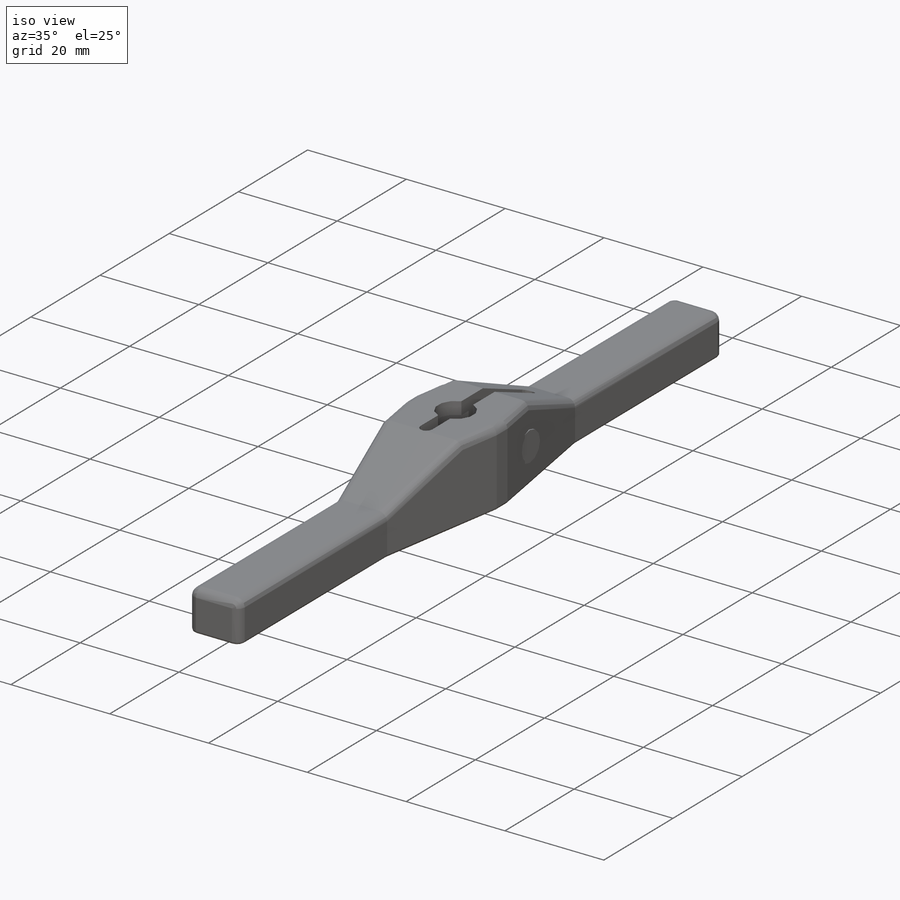
[diagram: iso view]
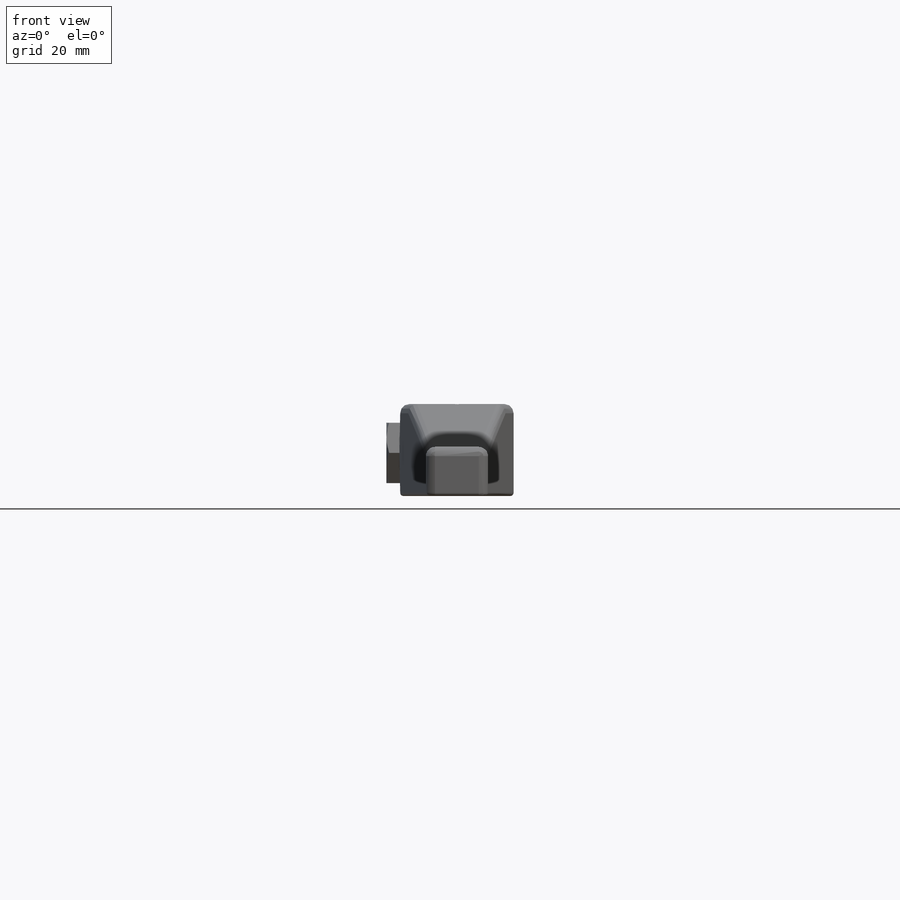
[diagram: front view]
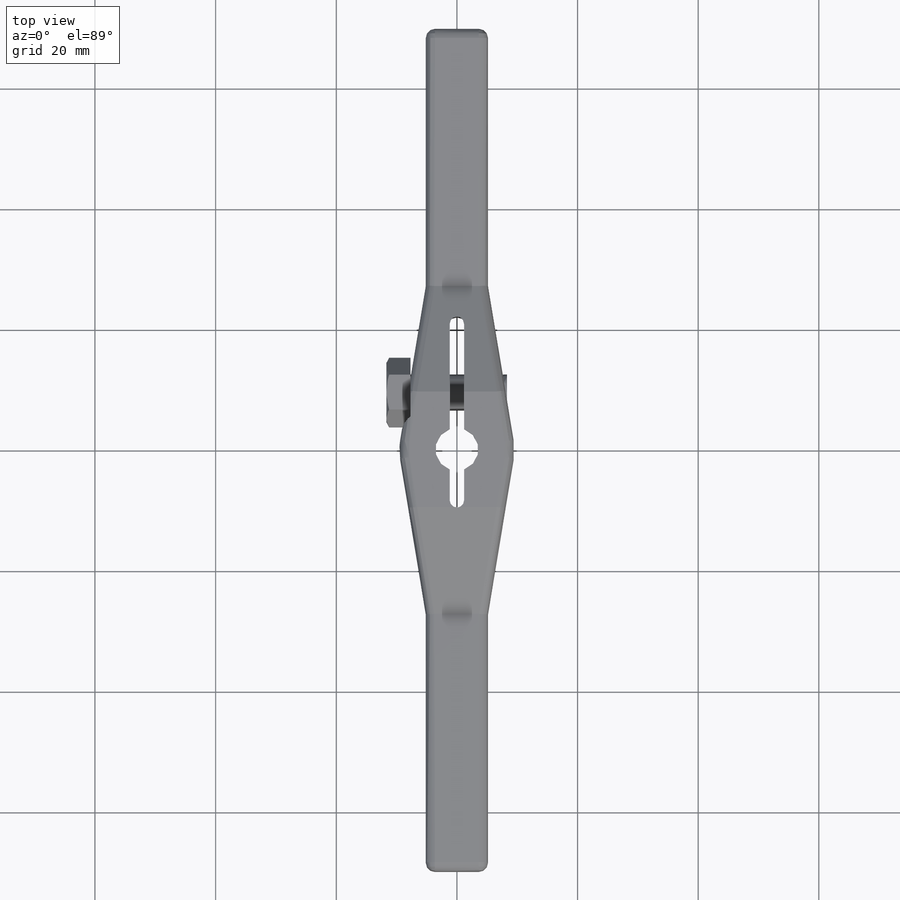
[diagram: top view]
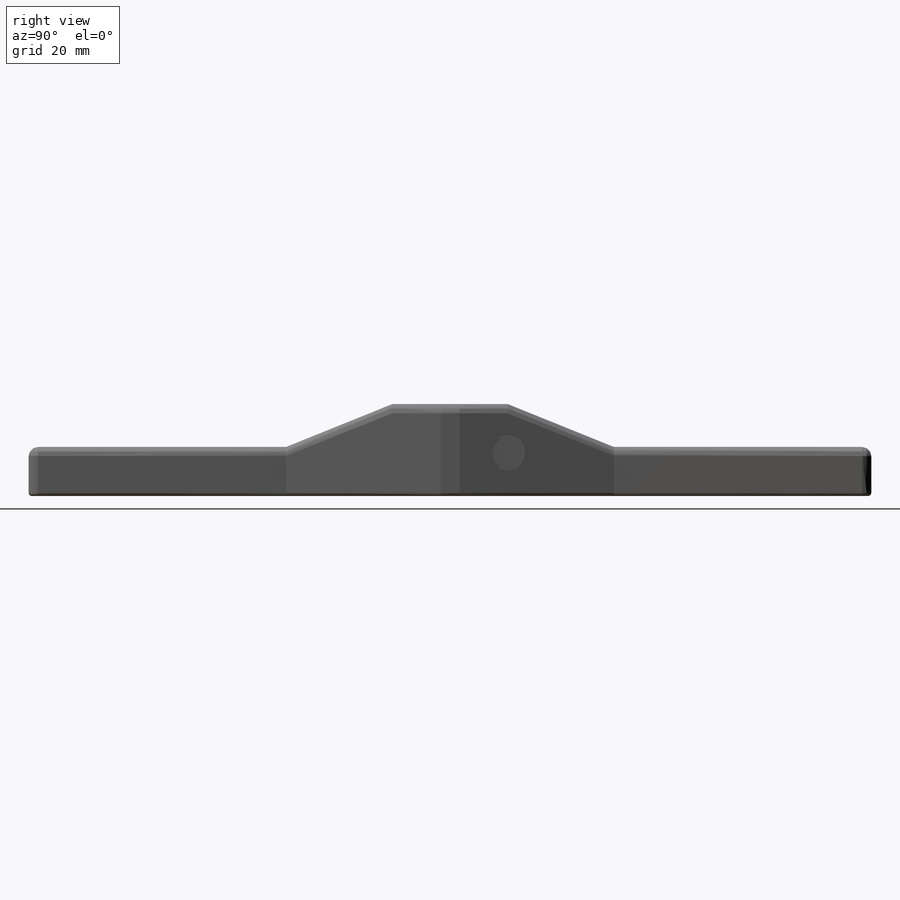
[diagram: right view]
SOLIDWORKS PART (.sldprt)
format: sldprt  version: not decoded by parser v0  size: 504,320 bytes
history: native  units: mm
features: sketch x11, extrude x5, cut_extrude x4, fillet x4, cut_revolve x2, mirror x2, material x1, plane x1 (+11 scaffold rows collapsed)
feature tree (41):
  scaffold x11  (default folders/planes/origin — collapsed)
  material  "Alloy Steel"
  sketch  "Sketch1"  dims[c1.D1=11.1506mm c1.D2=9.525mm c1.D3=14.2748mm c1.D4=103.1748mm c2.D3=27.178mm c2.D4=10.3124mm c2.D5=70.104mm]
  extrude  "Extrude1"  Depth=15.24mm
  sketch  "Sketch2"  dims[c1.D1=42.164mm c1.D2=~65.855618mm c2.D2=22.0deg c2.D3=71.12mm c2.D1=8.128mm c3.D3=27.178mm]
  cut_extrude  "Cut-Extrude1"  [1 undecoded]
  sketch  "Sketch18"  dims[D1=7.1374mm]
  extrude  "Extrude5"  Depth=12.7mm
  sketch  "Sketch3"  dims[D1=7.874mm D2=22.098mm D3=6.35mm]
  cut_extrude  "Cut-Extrude2"  Depth=2.3876mm
  sketch  "Sketch4"  dims[D1=2.3876mm]
  cut_extrude  "Cut-Extrude3"  [1 undecoded]
  plane  "Plane1"  Offset=9.525mm
  sketch  "Sketch11"  dims[D1=69.85mm]
  extrude  "Extrude4"  Depth=8.128mm
  sketch  "Sketch5"  dims[D1=7.1374mm D2=6.35mm D3=18.034mm D4=1.8288mm D5=5.0292mm]
  cut_revolve  "Cut-Revolve1"  Angle=360deg
  sketch  "Sketch6"  dims[D1=10.0076mm]
  extrude  "Extrude2"  Depth=3.9878mm
  sketch  "Sketch7"  dims[D1=5.9944mm]
  extrude  "Extrude3"  Depth=16.002mm
  sketch  "Sketch8"  dims[c1.D1=~2.933573mm c2.D1=30.0deg c2.D2=3.175mm]
  cut_revolve  "Cut-Revolve2"  Angle=360deg
  mirror  "Mirror1"
  mirror  "Mirror2"
  fillet  "Fillet2"  Radius=1.524mm
  fillet  "Fillet3"  Radius=0.508mm
  sketch  "Sketch17"  dims[D1=8.4582mm]
  cut_extrude  "Cut-Extrude4"  [1 undecoded]
  fillet  "Fillet4"  Radius=1.524mm
  fillet  "Fillet5"  Radius=1.524mm
decode coverage: 23 of 28 modeling features carry decoded parameters
note: ~ marks probable driven/reference dimensions
note: 3 parameter values undecoded
summary: no parameter record found for 3 features
note: suppression state not decoded; provenance and decode notes live in map.json
